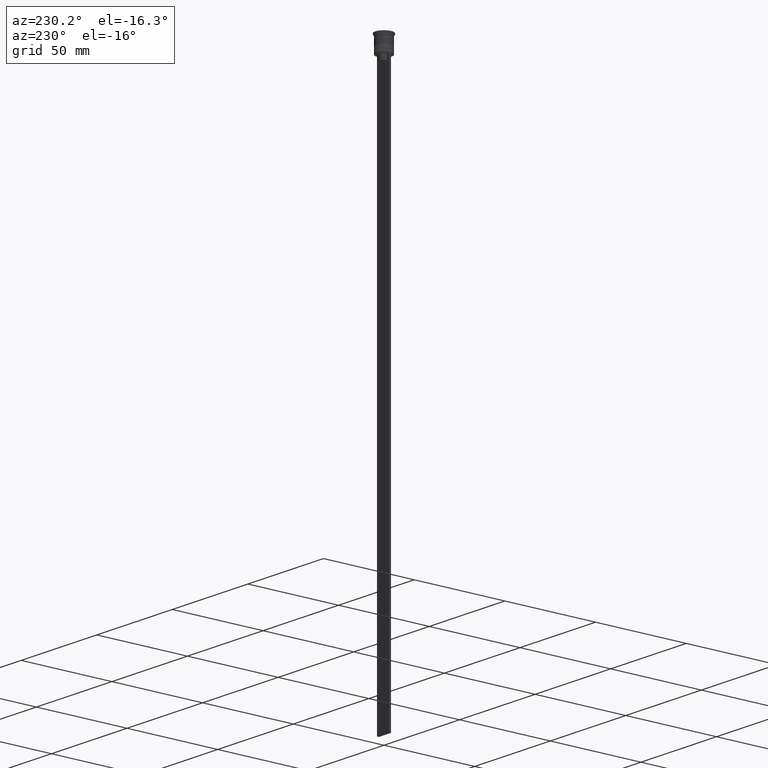
[diagram: clean part render]
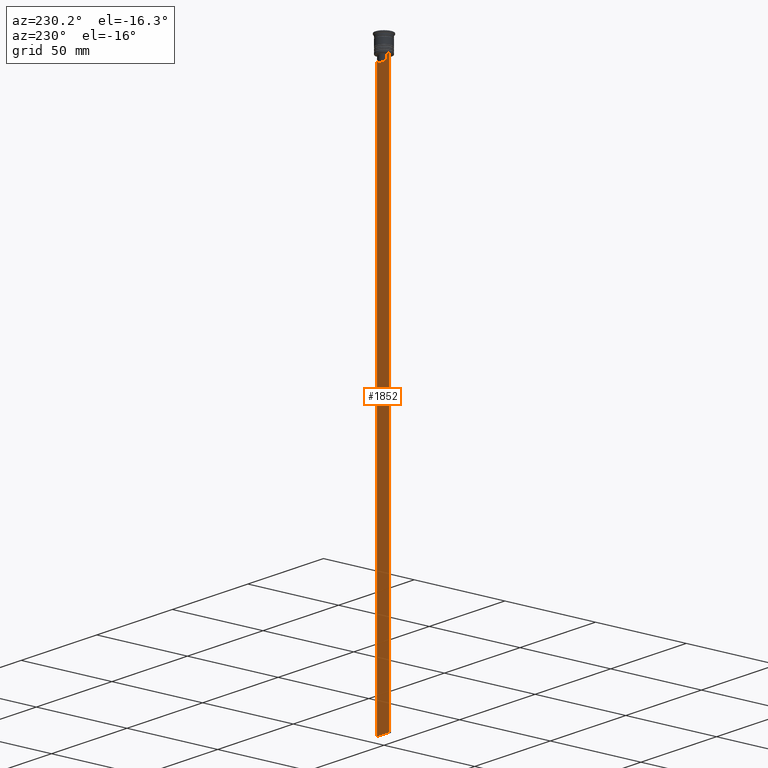
[diagram: same view with one face highlighted and labeled with its STEP entity id]
A machine part, auxiliary view. The second image highlights one B-rep face of the part: STEP entity #1852.
In plain terms, the highlighted planar face has unit normal (0, -1, -0).
Its self-contained STEP definition (entity closure, byte-faithful):
#7 = CARTESIAN_POINT ( 'NONE',  ( 4.000000000000005329, 0.4999999999999995559, -309.5000000000000000 ) ) ;
#54 = EDGE_CURVE ( 'NONE', #1241, #1065, #1430, .T. ) ;
#134 = VECTOR ( 'NONE', #624, 1000.000000000000000 ) ;
#138 = VECTOR ( 'NONE', #1948, 1000.000000000000000 ) ;
#180 = VECTOR ( 'NONE', #2004, 1000.000000000000000 ) ;
#187 = CARTESIAN_POINT ( 'NONE',  ( 2.771864055700302476, 0.4999999999999995559, -9.833582414266677674 ) ) ;
#228 = CARTESIAN_POINT ( 'NONE',  ( 4.000000000000005329, 0.4999999999999995559, -1.437742251701450202 ) ) ;
#235 = EDGE_CURVE ( 'NONE', #458, #2200, #1029, .T. ) ;
#242 = DIRECTION ( 'NONE',  ( -0.000000000000000000, -0.000000000000000000, 1.000000000000000000 ) ) ;
#253 = ORIENTED_EDGE ( 'NONE', *, *, #54, .T. ) ;
#286 = ORIENTED_EDGE ( 'NONE', *, *, #397, .T. ) ;
#307 = VERTEX_POINT ( 'NONE', #380 ) ;
#330 = VECTOR ( 'NONE', #1202, 1000.000000000000000 ) ;
#380 = CARTESIAN_POINT ( 'NONE',  ( 4.000000000000005329, 0.4999999999999995559, -309.5000000000000000 ) ) ;
#392 = CARTESIAN_POINT ( 'NONE',  ( -2.602402735934617350, 0.4999999999999995559, -10.00000000000000178 ) ) ;
#397 = EDGE_CURVE ( 'NONE', #451, #1241, #1894, .T. ) ;
#405 = CARTESIAN_POINT ( 'NONE',  ( 2.602402735934617350, 0.4999999999999995559, -10.00000000000000178 ) ) ;
#409 = DIRECTION ( 'NONE',  ( 0.000000000000000000, 0.000000000000000000, -1.000000000000000000 ) ) ;
#415 = CARTESIAN_POINT ( 'NONE',  ( 2.602402735934617350, 0.4999999999999995559, -12.50000000000000000 ) ) ;
#451 = VERTEX_POINT ( 'NONE', #415 ) ;
#452 = LINE ( 'NONE', #836, #330 ) ;
#458 = VERTEX_POINT ( 'NONE', #392 ) ;
#496 = LINE ( 'NONE', #1815, #2019 ) ;
#498 = CARTESIAN_POINT ( 'NONE',  ( -3.999999999999994671, 0.4999999999999995559, -309.5000000000000000 ) ) ;
#502 = ORIENTED_EDGE ( 'NONE', *, *, #1230, .F. ) ;
#536 = EDGE_CURVE ( 'NONE', #830, #307, #2280, .T. ) ;
#624 = DIRECTION ( 'NONE',  ( 0.000000000000000000, 0.000000000000000000, -1.000000000000000000 ) ) ;
#693 = CARTESIAN_POINT ( 'NONE',  ( -2.602402735934617350, 0.4999999999999995559, -10.00000000000000178 ) ) ;
#721 = ORIENTED_EDGE ( 'NONE', *, *, #2089, .T. ) ;
#722 = DIRECTION ( 'NONE',  ( 1.000000000000000000, 0.000000000000000000, 0.000000000000000000 ) ) ;
#730 = CARTESIAN_POINT ( 'NONE',  ( 4.000000000000005329, 0.4999999999999995559, -9.500000000000000000 ) ) ;
#777 = ORIENTED_EDGE ( 'NONE', *, *, #1958, .T. ) ;
#830 = VERTEX_POINT ( 'NONE', #1028 ) ;
#836 = CARTESIAN_POINT ( 'NONE',  ( -3.999999999999994671, 0.4999999999999995559, -1.437742251701450202 ) ) ;
#865 = VECTOR ( 'NONE', #242, 1000.000000000000000 ) ;
#932 = DIRECTION ( 'NONE',  ( 1.000000000000000000, 0.000000000000000000, 0.000000000000000000 ) ) ;
#937 = ORIENTED_EDGE ( 'NONE', *, *, #1286, .T. ) ;
#970 = VERTEX_POINT ( 'NONE', #498 ) ;
#1028 = CARTESIAN_POINT ( 'NONE',  ( 4.000000000000005329, 0.4999999999999995559, -9.500000000000000000 ) ) ;
#1029 = LINE ( 'NONE', #1455, #138 ) ;
#1041 = CARTESIAN_POINT ( 'NONE',  ( -2.941047749529105193, 0.4999999999999995559, -9.666873766989334982 ) ) ;
#1051 = ORIENTED_EDGE ( 'NONE', *, *, #2263, .T. ) ;
#1065 = VERTEX_POINT ( 'NONE', #1711 ) ;
#1097 = VECTOR ( 'NONE', #932, 1000.000000000000000 ) ;
#1109 = CARTESIAN_POINT ( 'NONE',  ( 3.110064308016796897, 0.4999999999999995559, -9.500000000000000000 ) ) ;
#1113 = LINE ( 'NONE', #1854, #1918 ) ;
#1202 = DIRECTION ( 'NONE',  ( 0.000000000000000000, 0.000000000000000000, -1.000000000000000000 ) ) ;
#1207 = CARTESIAN_POINT ( 'NONE',  ( -2.602402735934617350, 0.4999999999999995559, -12.50000000000000000 ) ) ;
#1230 = EDGE_CURVE ( 'NONE', #2034, #970, #452, .T. ) ;
#1241 = VERTEX_POINT ( 'NONE', #1782 ) ;
#1270 = VERTEX_POINT ( 'NONE', #2149 ) ;
#1273 = CARTESIAN_POINT ( 'NONE',  ( 2.941045828809989438, 0.4999999999999995559, -9.666875663357577864 ) ) ;
#1286 = EDGE_CURVE ( 'NONE', #2200, #451, #496, .T. ) ;
#1329 = ORIENTED_EDGE ( 'NONE', *, *, #536, .T. ) ;
#1415 = CARTESIAN_POINT ( 'NONE',  ( -2.771866350855961780, 0.4999999999999995559, -9.833580160334840059 ) ) ;
#1430 = B_SPLINE_CURVE_WITH_KNOTS ( 'NONE', 3,
 ( #405, #187, #1273, #1109 ),
 .UNSPECIFIED., .F., .F.,
 ( 4, 4 ),
 ( 0.01295151922336847637, 0.01367164596165162602 ),
 .UNSPECIFIED. ) ;
#1452 = DIRECTION ( 'NONE',  ( 0.000000000000000000, -1.000000000000000000, -0.000000000000000000 ) ) ;
#1455 = CARTESIAN_POINT ( 'NONE',  ( -2.602402735934617350, 0.4999999999999995559, 0.000000000000000000 ) ) ;
#1525 = CARTESIAN_POINT ( 'NONE',  ( -3.999999999999994671, 0.4999999999999997780, -9.500000000000000000 ) ) ;
#1535 = ORIENTED_EDGE ( 'NONE', *, *, #1819, .T. ) ;
#1681 = EDGE_LOOP ( 'NONE', ( #777, #721, #1791, #937, #286, #253, #1535, #1329, #1051, #502 ) ) ;
#1684 = PLANE ( 'NONE',  #2339 ) ;
#1711 = CARTESIAN_POINT ( 'NONE',  ( 3.110064308016796897, 0.4999999999999995559, -9.500000000000000000 ) ) ;
#1772 = B_SPLINE_CURVE_WITH_KNOTS ( 'NONE', 3,
 ( #2350, #1041, #1415, #693 ),
 .UNSPECIFIED., .F., .F.,
 ( 4, 4 ),
 ( 0.005378271293598279809, 0.006090816219555997280 ),
 .UNSPECIFIED. ) ;
#1782 = CARTESIAN_POINT ( 'NONE',  ( 2.602402735934617350, 0.4999999999999995559, -10.00000000000000178 ) ) ;
#1791 = ORIENTED_EDGE ( 'NONE', *, *, #235, .T. ) ;
#1815 = CARTESIAN_POINT ( 'NONE',  ( 0.000000000000000000, 0.4999999999999995559, -12.50000000000000000 ) ) ;
#1819 = EDGE_CURVE ( 'NONE', #1065, #830, #2387, .T. ) ;
#1826 = FACE_OUTER_BOUND ( 'NONE', #1681, .T. ) ;
#1852 = ADVANCED_FACE ( 'NONE', ( #1826 ), #1684, .F. ) ;
#1854 = CARTESIAN_POINT ( 'NONE',  ( 4.000000000000005329, 0.4999999999999995559, -9.500000000000000000 ) ) ;
#1857 = CARTESIAN_POINT ( 'NONE',  ( 2.602402735934617350, 0.4999999999999995559, 0.000000000000000000 ) ) ;
#1880 = DIRECTION ( 'NONE',  ( 1.000000000000000000, 0.000000000000000000, 0.000000000000000000 ) ) ;
#1894 = LINE ( 'NONE', #1857, #865 ) ;
#1907 = CARTESIAN_POINT ( 'NONE',  ( 4.000000000000005329, 0.4999999999999995559, -1.437742251701450202 ) ) ;
#1918 = VECTOR ( 'NONE', #1880, 1000.000000000000000 ) ;
#1948 = DIRECTION ( 'NONE',  ( 0.000000000000000000, 0.000000000000000000, -1.000000000000000000 ) ) ;
#1958 = EDGE_CURVE ( 'NONE', #2034, #1270, #1113, .T. ) ;
#2004 = DIRECTION ( 'NONE',  ( -1.000000000000000000, 0.000000000000000000, 0.000000000000000000 ) ) ;
#2019 = VECTOR ( 'NONE', #722, 1000.000000000000000 ) ;
#2034 = VERTEX_POINT ( 'NONE', #1525 ) ;
#2089 = EDGE_CURVE ( 'NONE', #1270, #458, #1772, .T. ) ;
#2149 = CARTESIAN_POINT ( 'NONE',  ( -3.110064308016796897, 0.4999999999999995559, -9.500000000000000000 ) ) ;
#2200 = VERTEX_POINT ( 'NONE', #1207 ) ;
#2263 = EDGE_CURVE ( 'NONE', #307, #970, #2384, .T. ) ;
#2280 = LINE ( 'NONE', #1907, #134 ) ;
#2339 = AXIS2_PLACEMENT_3D ( 'NONE', #228, #1452, #409 ) ;
#2350 = CARTESIAN_POINT ( 'NONE',  ( -3.110064308016796897, 0.4999999999999995559, -9.500000000000000000 ) ) ;
#2384 = LINE ( 'NONE', #7, #180 ) ;
#2387 = LINE ( 'NONE', #730, #1097 ) ;